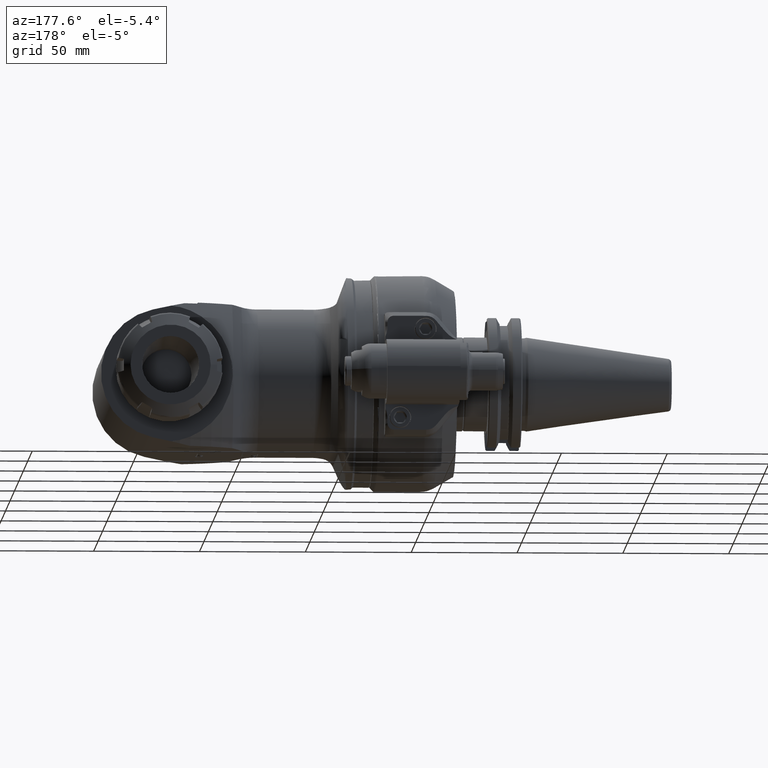
[diagram: clean part render]
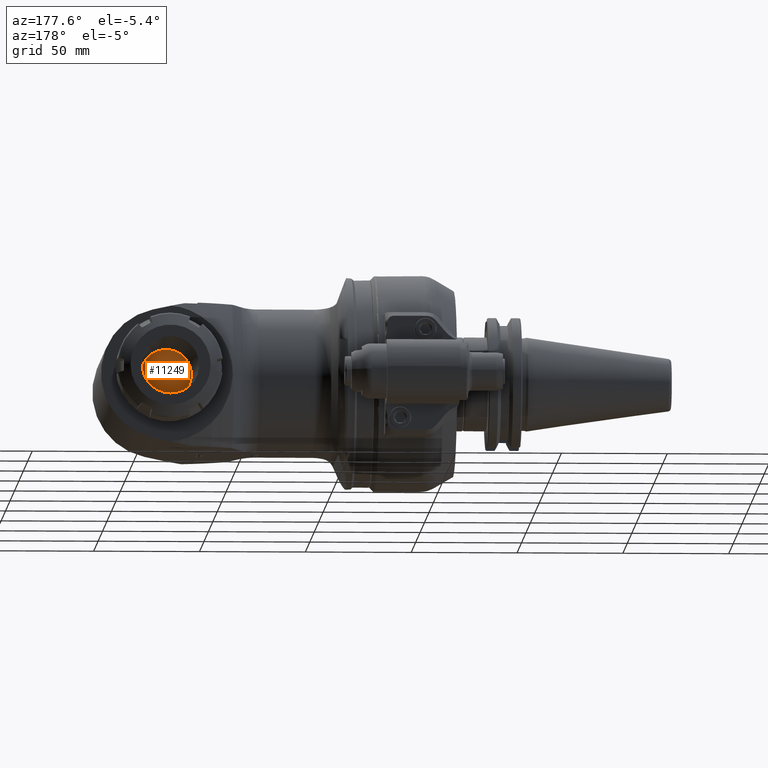
[diagram: same view with one face highlighted and labeled with its STEP entity id]
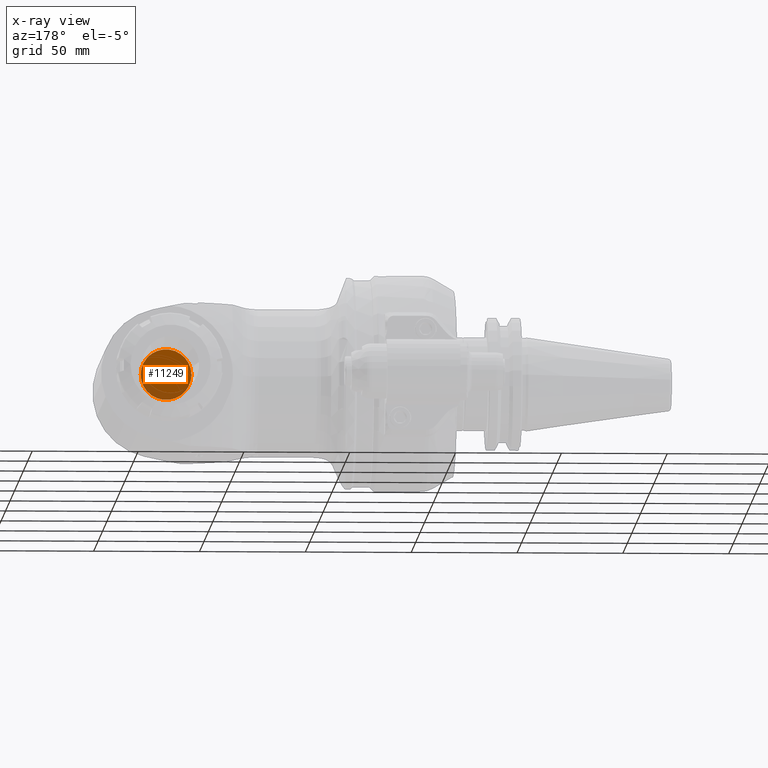
[diagram: x-ray of the same camera — body ghosted, the highlighted face saturated]
A machine part, auxiliary view. The second image highlights one B-rep face of the part: STEP entity #11249.
The next image is the same camera in x-ray: the body ghosted, the highlighted face saturated — about 18% of this face is hidden behind the body in this view.
In plain terms, the highlighted planar face has unit normal (0, -1, 0).
Its self-contained STEP definition (entity closure, byte-faithful):
#2684=FACE_OUTER_BOUND('',#3409,.T.);
#3409=EDGE_LOOP('',(#9367));
#4084=CIRCLE('',#12372,12.);
#5062=VERTEX_POINT('',#27287);
#6563=EDGE_CURVE('',#5062,#5062,#4084,.T.);
#9367=ORIENTED_EDGE('',*,*,#6563,.T.);
#10715=PLANE('',#12373);
#11249=ADVANCED_FACE('',(#2684),#10715,.F.);
#12372=AXIS2_PLACEMENT_3D('',#27288,#15001,#15002);
#12373=AXIS2_PLACEMENT_3D('',#27290,#15004,#15005);
#15001=DIRECTION('center_axis',(0.,1.,0.));
#15002=DIRECTION('ref_axis',(-1.,0.,0.));
#15004=DIRECTION('center_axis',(0.,-1.,0.));
#15005=DIRECTION('ref_axis',(0.,0.,1.));
#27287=CARTESIAN_POINT('',(290.063097,42.5,-1.46957615897682E-15));
#27288=CARTESIAN_POINT('Origin',(278.063097,42.5,0.));
#27290=CARTESIAN_POINT('Origin',(256.313097,42.5,0.));